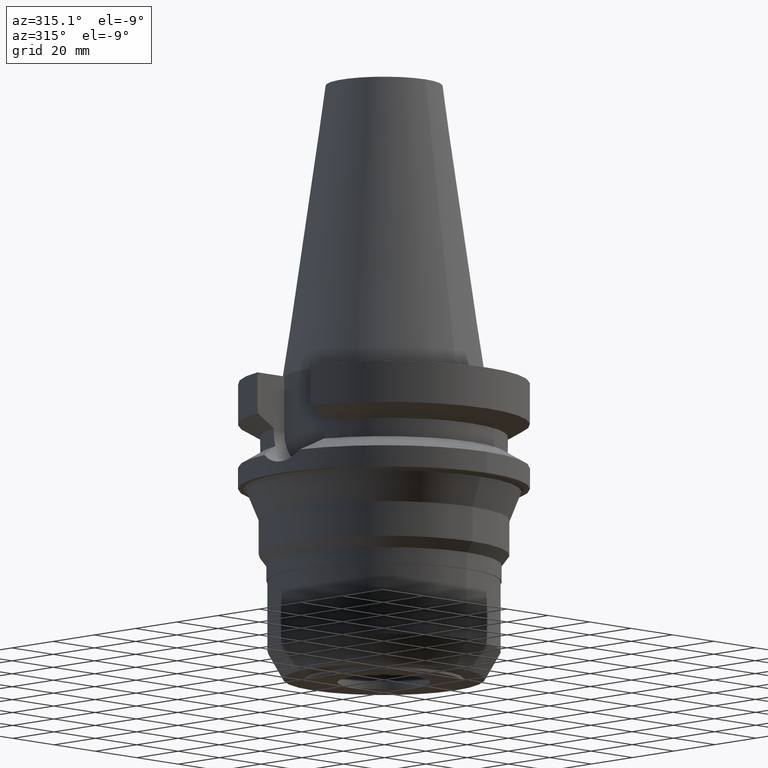
[diagram: clean part render]
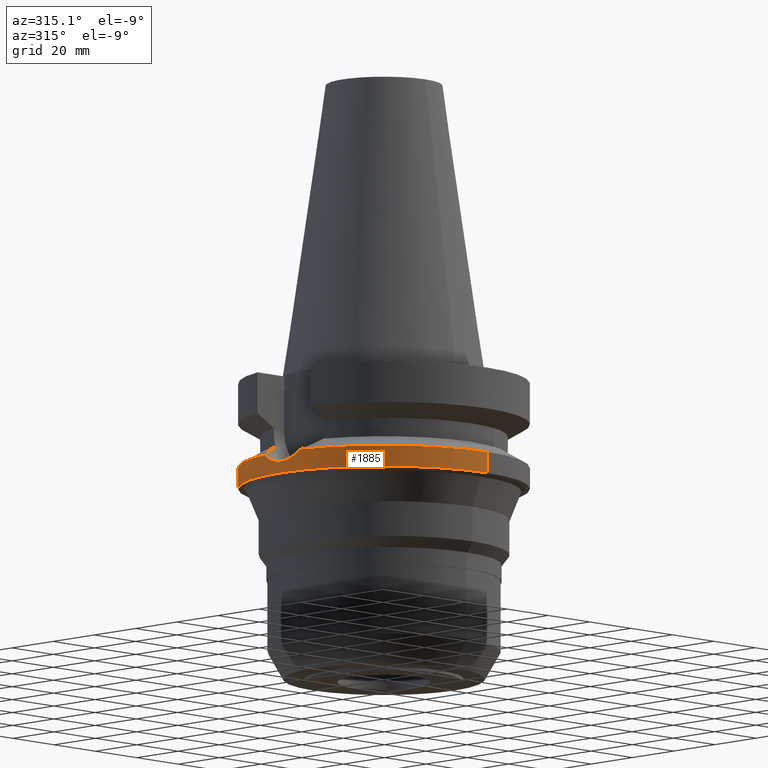
[diagram: same view with one face highlighted and labeled with its STEP entity id]
A machine part, auxiliary view. The second image highlights one B-rep face of the part: STEP entity #1885.
In plain terms, the highlighted cylindrical surface (partial cylindrical patch) has radius 50 mm, axis along (0, 0, -1).
Its self-contained STEP definition (entity closure, byte-faithful):
#496=CARTESIAN_POINT('',(0.E0,2.597965719711E-14,-3.8E1));
#497=DIRECTION('',(0.E0,0.E0,1.E0));
#498=DIRECTION('',(0.E0,1.E0,0.E0));
#499=AXIS2_PLACEMENT_3D('',#496,#497,#498);
#542=DIRECTION('',(0.E0,2.152361642122E-14,-1.E0));
#543=VECTOR('',#542,7.262692235730E0);
#544=CARTESIAN_POINT('',(0.E0,5.E1,-3.073730776427E1));
#545=LINE('',#544,#543);
#563=CARTESIAN_POINT('',(-4.926250064874E1,-8.556052234130E0,
-3.073730776427E1));
#608=CARTESIAN_POINT('',(0.E0,0.E0,-3.073730776427E1));
#609=DIRECTION('',(0.E0,0.E0,-1.E0));
#610=DIRECTION('',(0.E0,-1.E0,0.E0));
#611=AXIS2_PLACEMENT_3D('',#608,#609,#610);
#630=CARTESIAN_POINT('',(-4.926250064874E1,8.556052234130E0,-3.073730776427E1));
#631=CARTESIAN_POINT('',(-4.938257429577E1,7.864713757791E0,-3.135428265028E1));
#632=CARTESIAN_POINT('',(-4.960817496728E1,6.393786706539E0,-3.240301946926E1));
#633=CARTESIAN_POINT('',(-4.986668428454E1,3.937615156802E0,-3.347900540659E1));
#634=CARTESIAN_POINT('',(-5.000665023457E1,1.312501551428E0,-3.402611852993E1));
#635=CARTESIAN_POINT('',(-5.000490610094E1,-1.372581968253E0,
-3.401943324889E1));
#636=CARTESIAN_POINT('',(-4.986266852406E1,-3.984389612697E0,
-3.346289568009E1));
#637=CARTESIAN_POINT('',(-4.960441900302E1,-6.419943407E0,-3.238628845287E1));
#638=CARTESIAN_POINT('',(-4.938106601789E1,-7.873397849284E0,
-3.134653266017E1));
#639=CARTESIAN_POINT('',(-4.926250064874E1,-8.556052234130E0,
-3.073730776427E1));
#644=DIRECTION('',(0.E0,-2.054527022026E-14,-1.E0));
#645=VECTOR('',#644,7.262692235730E0);
#646=CARTESIAN_POINT('',(0.E0,-5.E1,-3.073730776427E1));
#647=LINE('',#646,#645);
#657=CARTESIAN_POINT('',(-4.926250064874E1,8.556052234130E0,-3.073730776427E1));
#662=CARTESIAN_POINT('',(0.E0,0.E0,-3.073730776427E1));
#663=DIRECTION('',(0.E0,0.E0,-1.E0));
#664=DIRECTION('',(-9.852500129747E-1,1.711210446826E-1,0.E0));
#665=AXIS2_PLACEMENT_3D('',#662,#663,#664);
#1210=CARTESIAN_POINT('',(0.E0,-5.E1,-3.8E1));
#1211=CARTESIAN_POINT('',(0.E0,5.E1,-3.8E1));
#1212=VERTEX_POINT('',#1210);
#1213=VERTEX_POINT('',#1211);
#1217=CARTESIAN_POINT('',(0.E0,5.E1,-3.073730776427E1));
#1218=VERTEX_POINT('',#1217);
#1219=CARTESIAN_POINT('',(0.E0,-5.E1,-3.073730776427E1));
#1220=VERTEX_POINT('',#1219);
#1232=VERTEX_POINT('',#563);
#1237=VERTEX_POINT('',#657);
#1871=CARTESIAN_POINT('',(0.E0,2.597965719711E-14,1.1214E2));
#1872=DIRECTION('',(0.E0,0.E0,-1.E0));
#1873=DIRECTION('',(0.E0,-1.E0,0.E0));
#1874=AXIS2_PLACEMENT_3D('',#1871,#1872,#1873);
#1875=CYLINDRICAL_SURFACE('',#1874,5.E1);
#1876=ORIENTED_EDGE('',*,*,#1852,.T.);
#1877=ORIENTED_EDGE('',*,*,#1841,.F.);
#1878=ORIENTED_EDGE('',*,*,#1795,.T.);
#1879=ORIENTED_EDGE('',*,*,#1772,.F.);
#1880=ORIENTED_EDGE('',*,*,#1792,.F.);
#1882=ORIENTED_EDGE('',*,*,#1881,.F.);
#1883=EDGE_LOOP('',(#1876,#1877,#1878,#1879,#1880,#1882));
#1884=FACE_OUTER_BOUND('',#1883,.F.);
#500=CIRCLE('',#499,5.E1);
#612=CIRCLE('',#611,5.E1);
#640=B_SPLINE_CURVE_WITH_KNOTS('',3,(#630,#631,#632,#633,#634,#635,#636,#637,
#638,#639),.UNSPECIFIED.,.F.,.F.,(4,1,1,1,1,1,1,4),(0.E0,1.428571428571E-1,
2.857142857143E-1,4.285714285714E-1,5.714285714286E-1,7.142857142857E-1,
8.571428571429E-1,1.E0),.UNSPECIFIED.);
#666=CIRCLE('',#665,5.E1);
#1772=EDGE_CURVE('',#1213,#1212,#500,.T.);
#1792=EDGE_CURVE('',#1218,#1213,#545,.T.);
#1795=EDGE_CURVE('',#1220,#1212,#647,.T.);
#1841=EDGE_CURVE('',#1220,#1232,#612,.T.);
#1852=EDGE_CURVE('',#1237,#1232,#640,.T.);
#1881=EDGE_CURVE('',#1237,#1218,#666,.T.);
#1885=ADVANCED_FACE('',(#1884),#1875,.T.);